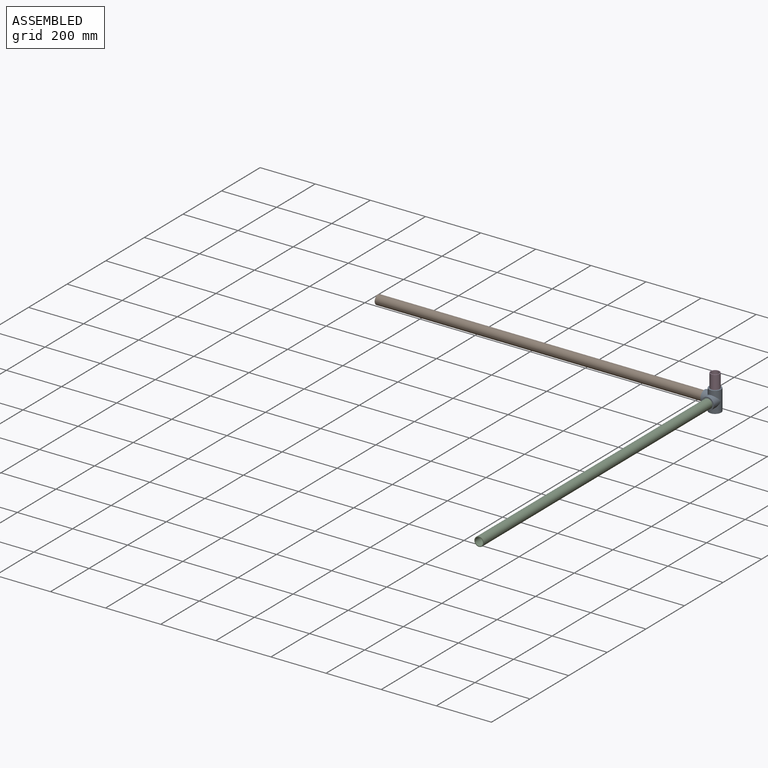
[diagram: assembled view]
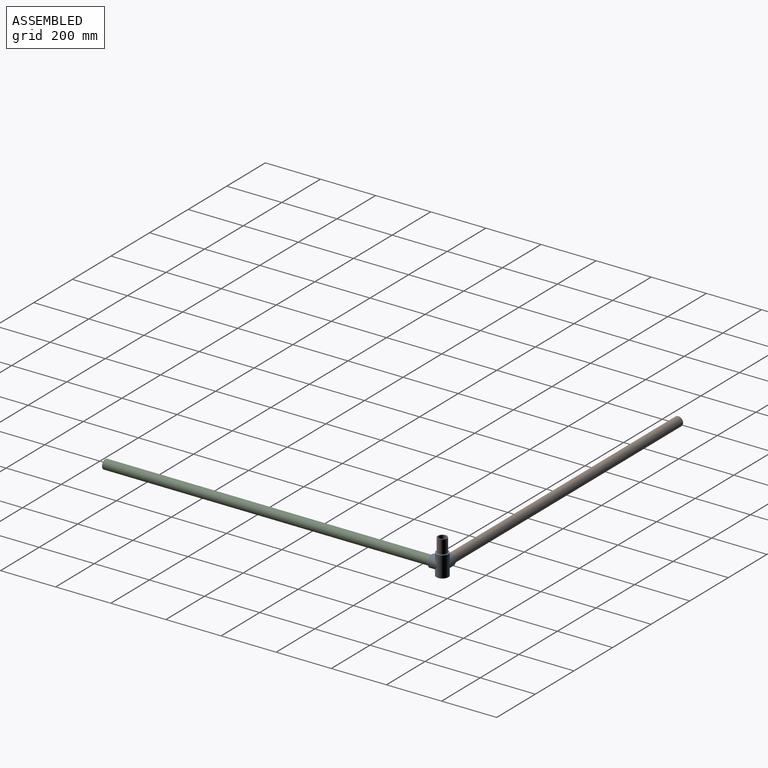
[diagram: assembled view, second angle]
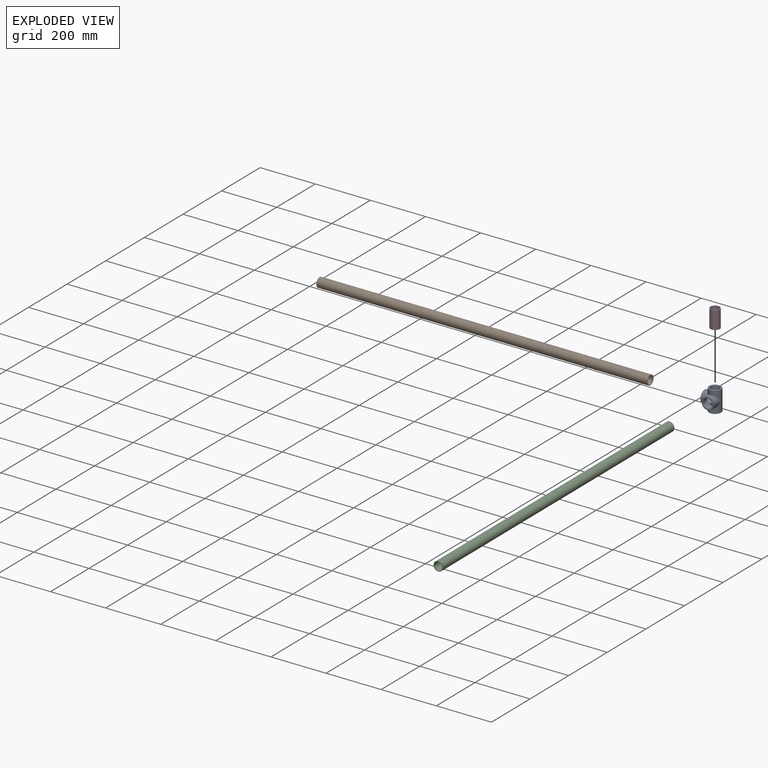
[diagram: exploded view]
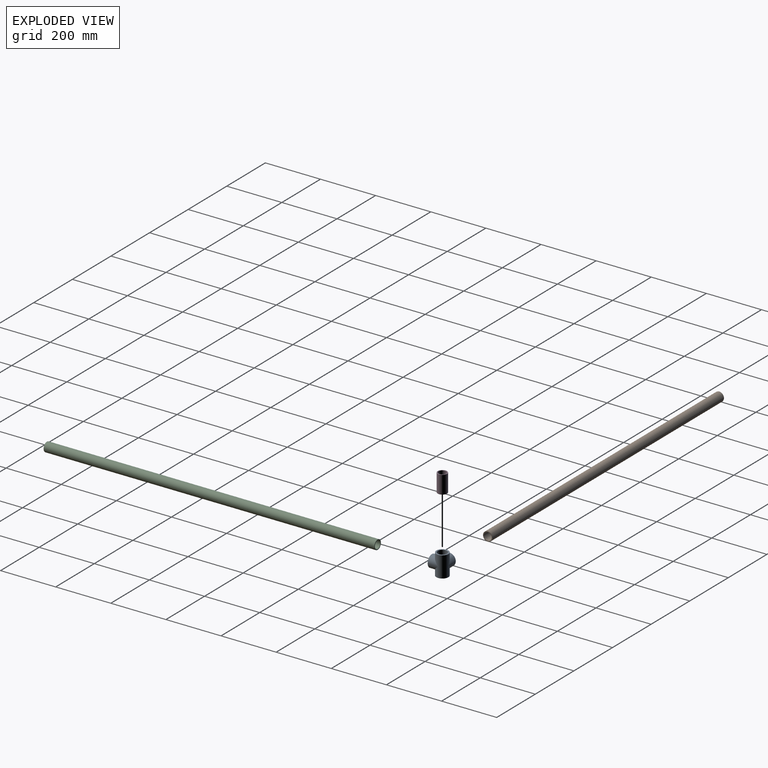
[diagram: exploded view, second angle]
ASSEMBLY  parts=4 mates=3
PART A: 10 faces, bbox 60x60x76 mm
  f0: cylinder r=17mm len=76mm, axis (0,0,1), area 6144.5mm2, adj f1,f2,f8,f9
  f1: plane 44x44mm, normal (0,0,-1), area 612.6mm2, adj f0,f3
  f2: plane 44x44mm, normal (0,0,1), area 612.6mm2, adj f0,f3
  f3: cylinder r=22mm len=76mm, axis (0,0,1), area 7200.5mm2, adj f1,f2,f4,f6
  f4: cylinder r=22mm len=44mm, axis (1,0,0), area 2915.8mm2, adj f3,f5,f6
  f5: plane 44x44mm, normal (-1,0,0), area 612.6mm2, adj f4,f8
  f6: cylinder r=22mm len=44mm, axis (0,1,0), area 2915.8mm2, adj f3,f4,f7
  f7: plane 44x44mm, normal (0,-1,0), area 612.6mm2, adj f6,f9
  f8: cylinder r=17mm len=38mm, axis (-1,0,0), area 2663.5mm2, adj f0,f5,f9
  f9: cylinder r=17mm len=38mm, axis (0,-1,0), area 2663.5mm2, adj f0,f7,f8
PART B: 4 faces, bbox 34x1200x34 mm
  f0: cylinder r=14.35mm len=1200mm, axis (0,1,0), area 108196.5mm2, adj f2,f3
  f1: cylinder r=17mm len=1200mm, axis (0,1,0), area 128177mm2, adj f2,f3
  f2: plane 34x34mm, normal (0,-1,0), area 261mm2, adj f0,f1
  f3: plane 34x34mm, normal (0,1,0), area 261mm2, adj f0,f1
PART C: same geometry as B
PART D: 4 faces, bbox 34x65x34 mm
  f0: cylinder r=14.35mm len=65mm, axis (0,1,0), area 5860.6mm2, adj f2,f3
  f1: cylinder r=17mm len=65mm, axis (0,1,0), area 6942.9mm2, adj f2,f3
  f2: plane 34x34mm, normal (0,-1,0), area 261mm2, adj f0,f1
  f3: plane 34x34mm, normal (0,1,0), area 261mm2, adj f0,f1
PLACE A t=(-78.71,-72.22,-45.23)mm
PLACE B rot(axis=(-0.58,-0.58,-0.58),120deg) t=(-101.71,-72.22,-45.23)mm
PLACE C t=(-78.71,-95.22,-45.23)mm
PLACE D rot(axis=(-1,0,0),90deg) t=(-78.71,-72.22,-22.23)mm
MATE fastened B.f0 <-> A.f4  axis (1,0,0) through (-101.71,-72.22,-45.23)mm
MATE fastened D.f0 <-> A.f0  axis (0,0,-1) through (-78.71,-72.22,-22.23)mm
MATE fastened C.f0 <-> A.f6  axis (0,1,0) through (-78.71,-95.22,-45.23)mm
